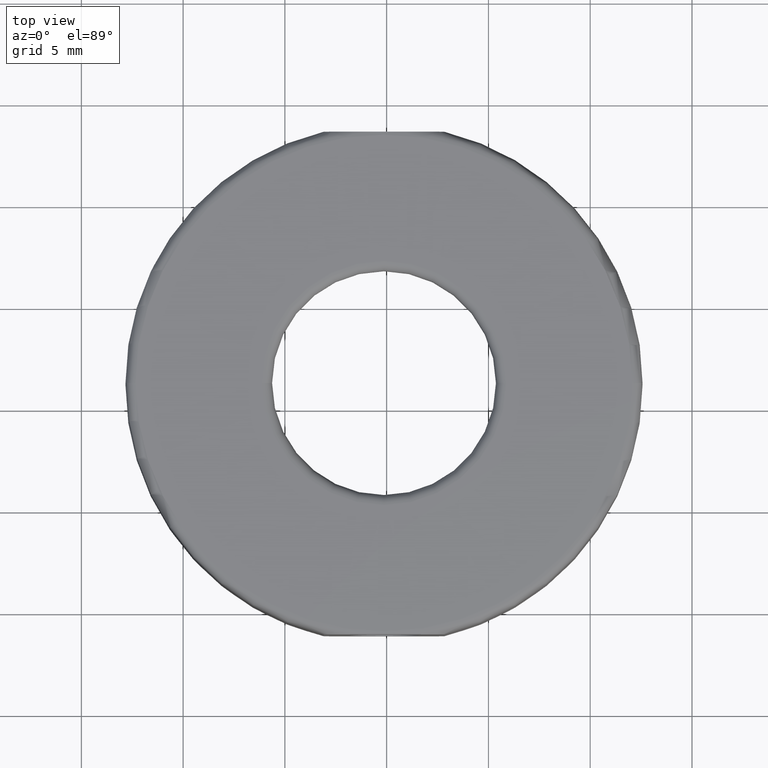
[diagram: clean part render]
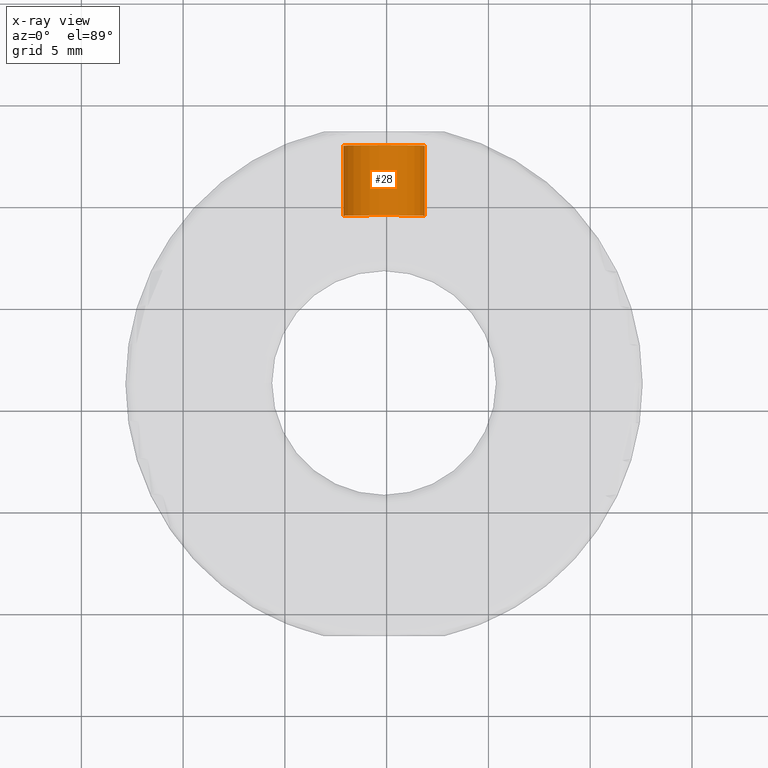
[diagram: x-ray — body ghosted, one internal face saturated and labeled with its STEP entity id]
A machine part, top view, then the same camera in x-ray: the body is ghosted and one INTERNAL B-rep face — a face not visible from any outside direction — is saturated and labeled: STEP entity #28.
In plain terms, the highlighted cylindrical surface (partial cylindrical patch) has radius 2 mm, axis along (0, -1, 0).
Its self-contained STEP definition (entity closure, byte-faithful):
#28 = ADVANCED_FACE ( 'NONE', ( #1046 ), #1486, .T. ) ;
#78 = AXIS2_PLACEMENT_3D ( 'NONE', #1514, #1538, #766 ) ;
#200 = DIRECTION ( 'NONE',  ( -6.122958999999999600E-016, 1.000000000000000000, -0.0000000000000000000 ) ) ;
#233 = CARTESIAN_POINT ( 'NONE',  ( 1.869217617678792900, 9.525128223901953500, -1.056113247211677000E-015 ) ) ;
#296 = CARTESIAN_POINT ( 'NONE',  ( 1.869217618061326000, 11.25012822390195300, -1.301042606982605300E-015 ) ) ;
#346 = EDGE_CURVE ( 'NONE', #1089, #1394, #2147, .T. ) ;
#430 = DIRECTION ( 'NONE',  ( 6.122958999999999600E-016, -1.000000000000000000, 0.0000000000000000000 ) ) ;
#455 = EDGE_LOOP ( 'NONE', ( #2344, #1189, #1645, #1673 ) ) ;
#485 = EDGE_CURVE ( 'NONE', #1779, #1089, #1242, .T. ) ;
#577 = CARTESIAN_POINT ( 'NONE',  ( -0.1307823819386701400, 9.525128223901951700, -1.301042606982605300E-015 ) ) ;
#589 = CARTESIAN_POINT ( 'NONE',  ( -2.130782381872190300, 12.97512822390194700, -1.056113247161276300E-015 ) ) ;
#748 = LINE ( 'NONE', #296, #1536 ) ;
#762 = DIRECTION ( 'NONE',  ( 1.000000000000000000, 8.673617379884048300E-016, 0.0000000000000000000 ) ) ;
#766 = DIRECTION ( 'NONE',  ( 1.000000000000000000, 8.673617379884048300E-016, 0.0000000000000000000 ) ) ;
#772 = EDGE_CURVE ( 'NONE', #2051, #1779, #2310, .T. ) ;
#862 = AXIS2_PLACEMENT_3D ( 'NONE', #577, #200, #762 ) ;
#1046 = FACE_OUTER_BOUND ( 'NONE', #455, .T. ) ;
#1089 = VERTEX_POINT ( 'NONE', #1649 ) ;
#1189 = ORIENTED_EDGE ( 'NONE', *, *, #485, .T. ) ;
#1242 = LINE ( 'NONE', #2106, #1275 ) ;
#1275 = VECTOR ( 'NONE', #2289, 1000.000000000000000 ) ;
#1394 = VERTEX_POINT ( 'NONE', #233 ) ;
#1486 = CYLINDRICAL_SURFACE ( 'NONE', #1552, 1.999999999999997100 ) ;
#1514 = CARTESIAN_POINT ( 'NONE',  ( -0.1307823819386722500, 12.97512822390194900, -1.301042606982605300E-015 ) ) ;
#1536 = VECTOR ( 'NONE', #2131, 1000.000000000000000 ) ;
#1538 = DIRECTION ( 'NONE',  ( 6.122958999999999600E-016, -1.000000000000000000, 0.0000000000000000000 ) ) ;
#1552 = AXIS2_PLACEMENT_3D ( 'NONE', #1940, #430, #1912 ) ;
#1645 = ORIENTED_EDGE ( 'NONE', *, *, #346, .T. ) ;
#1649 = CARTESIAN_POINT ( 'NONE',  ( -2.130782381556134200, 9.525128223901949900, -1.301042606994300200E-015 ) ) ;
#1673 = ORIENTED_EDGE ( 'NONE', *, *, #1995, .F. ) ;
#1779 = VERTEX_POINT ( 'NONE', #589 ) ;
#1912 = DIRECTION ( 'NONE',  ( 1.000000000000000000, 8.673617379884048300E-016, 0.0000000000000000000 ) ) ;
#1940 = CARTESIAN_POINT ( 'NONE',  ( -0.1307823819386712000, 11.25012822390195100, -1.301042606982605300E-015 ) ) ;
#1995 = EDGE_CURVE ( 'NONE', #2051, #1394, #748, .T. ) ;
#2051 = VERTEX_POINT ( 'NONE', #2123 ) ;
#2106 = CARTESIAN_POINT ( 'NONE',  ( -2.130782381938668200, 11.25012822390195000, -1.056113247153135000E-015 ) ) ;
#2123 = CARTESIAN_POINT ( 'NONE',  ( 1.869217617994846800, 12.97512822390195100, -1.301042606982605300E-015 ) ) ;
#2131 = DIRECTION ( 'NONE',  ( 6.122958999999999600E-016, -1.000000000000000000, 0.0000000000000000000 ) ) ;
#2147 = CIRCLE ( 'NONE', #862, 1.999999999999997100 ) ;
#2289 = DIRECTION ( 'NONE',  ( 6.122958999999999600E-016, -1.000000000000000000, 0.0000000000000000000 ) ) ;
#2310 = CIRCLE ( 'NONE', #78, 1.999999999999997100 ) ;
#2344 = ORIENTED_EDGE ( 'NONE', *, *, #772, .T. ) ;